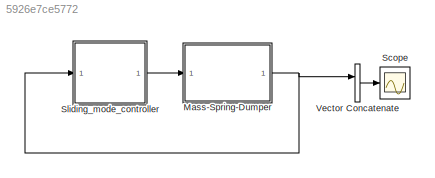
MODEL slx_5926e7ce5772
KIND model
CONFIG AbsTol = auto
CONFIG EnableMultiTasking = off
CONFIG FixedStep = auto
CONFIG MaxStep = auto
CONFIG MinStep = auto
CONFIG RelTol = 1e-3
CONFIG SampleTimeConstraint = Unconstrained
CONFIG SolverName = VariableStepAuto
CONFIG StartTime = 0.0
CONFIG StopTime = 20.0
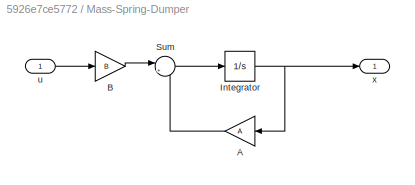
BLOCK [SubSystem] Mass-Spring-Dumper
  Ports = [1, 1]
  RequestExecContextInheritance = off
BLOCK [Gain] Mass-Spring-Dumper/A
  Gain = A
  Multiplication = Matrix(K*u)
  NameLocation = top
BLOCK [Gain] Mass-Spring-Dumper/B
  Gain = B
BLOCK [Integrator] Mass-Spring-Dumper/Integrator
  Ports = [1, 1]
BLOCK [Sum] Mass-Spring-Dumper/Sum
  Inputs = |++
  Ports = [2, 1]
BLOCK [Inport] Mass-Spring-Dumper/u
BLOCK [Outport] Mass-Spring-Dumper/x
BLOCK [Scope] Scope
  Floating = off
  NumInputPorts = 1
  Ports = [1]
  ScopeSpecificationString = Simulink.scopes.TimeScopeBlockCfg('CurrentConfiguration', extmgr.ConfigurationSet(extmgr.Configuration('Core','General UI',true),extmgr.Configuration('Core','Source UI',true),extmgr.Configuration('Sources','WiredSimulink',true),extmgr.Configuration('Visuals','Time Domain',true,'SerializedDisplays',{struct('MinYLimReal','-0.23537','MaxYLimReal','2.11835','YLabelReal','','MinYLimMag','0.00000','MaxY...<+1431ch>
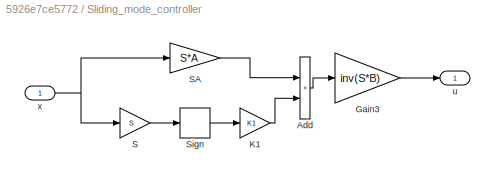
BLOCK [SubSystem] Sliding_mode_controller
  Ports = [1, 1]
  RequestExecContextInheritance = off
BLOCK [Sum] Sliding_mode_controller/Add
  IconShape = rectangular
  Ports = [2, 1]
BLOCK [Gain] Sliding_mode_controller/Gain3
  Gain = inv(S*B)
  Multiplication = Matrix(K*u)
BLOCK [Gain] Sliding_mode_controller/K1
  Gain = K1
BLOCK [Gain] Sliding_mode_controller/S
  Gain = S
  Multiplication = Matrix(K*u)
BLOCK [Gain] Sliding_mode_controller/SA
  Gain = S*A
  Multiplication = Matrix(K*u)
BLOCK [Signum] Sliding_mode_controller/Sign
BLOCK [Outport] Sliding_mode_controller/u
BLOCK [Inport] Sliding_mode_controller/x
BLOCK [Concatenate] Vector Concatenate
  Ports = [2, 1]
LINE Mass-Spring-Dumper/A:1 -> Mass-Spring-Dumper/Sum:2
LINE Mass-Spring-Dumper/B:1 -> Mass-Spring-Dumper/Sum:1
NET Mass-Spring-Dumper/Integrator:1 -> Mass-Spring-Dumper/A:1, Mass-Spring-Dumper/x:1
LINE Mass-Spring-Dumper/Sum:1 -> Mass-Spring-Dumper/Integrator:1
LINE Mass-Spring-Dumper/u:1 -> Mass-Spring-Dumper/B:1
NET Mass-Spring-Dumper:1 -> Sliding_mode_controller:1, Vector Concatenate:1
LINE Sliding_mode_controller/Add:1 -> Sliding_mode_controller/Gain3:1
LINE Sliding_mode_controller/Gain3:1 -> Sliding_mode_controller/u:1
LINE Sliding_mode_controller/K1:1 -> Sliding_mode_controller/Add:2
LINE Sliding_mode_controller/S:1 -> Sliding_mode_controller/Sign:1
LINE Sliding_mode_controller/SA:1 -> Sliding_mode_controller/Add:1
LINE Sliding_mode_controller/Sign:1 -> Sliding_mode_controller/K1:1
NET Sliding_mode_controller/x:1 -> Sliding_mode_controller/S:1, Sliding_mode_controller/SA:1
LINE Sliding_mode_controller:1 -> Mass-Spring-Dumper:1
LINE Vector Concatenate:1 -> Scope:1
note: NET lines group one-source signal fan-out (src -> all destinations, sorted); 1:1 wires keep LINE
